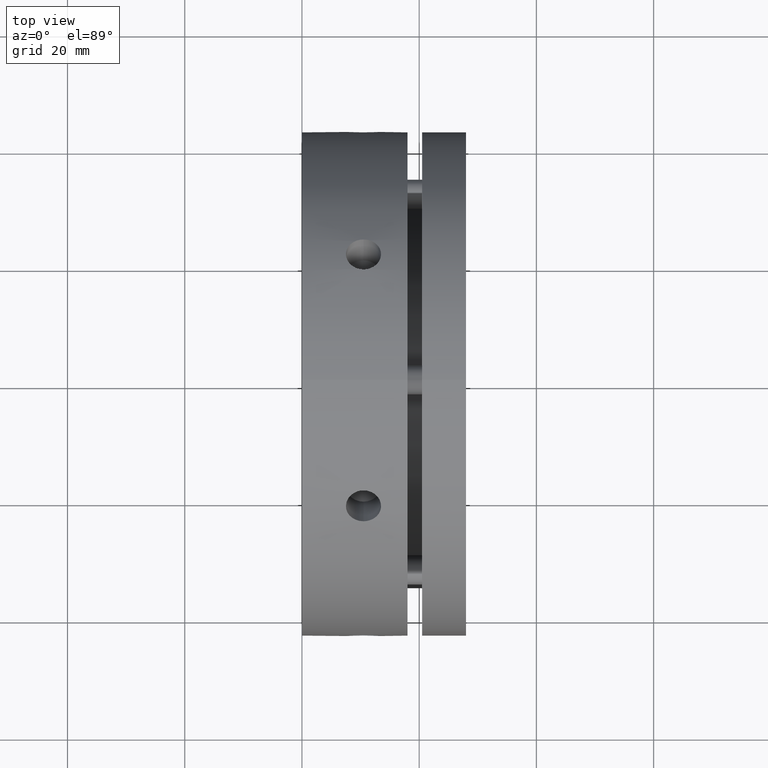
[diagram: clean part render]
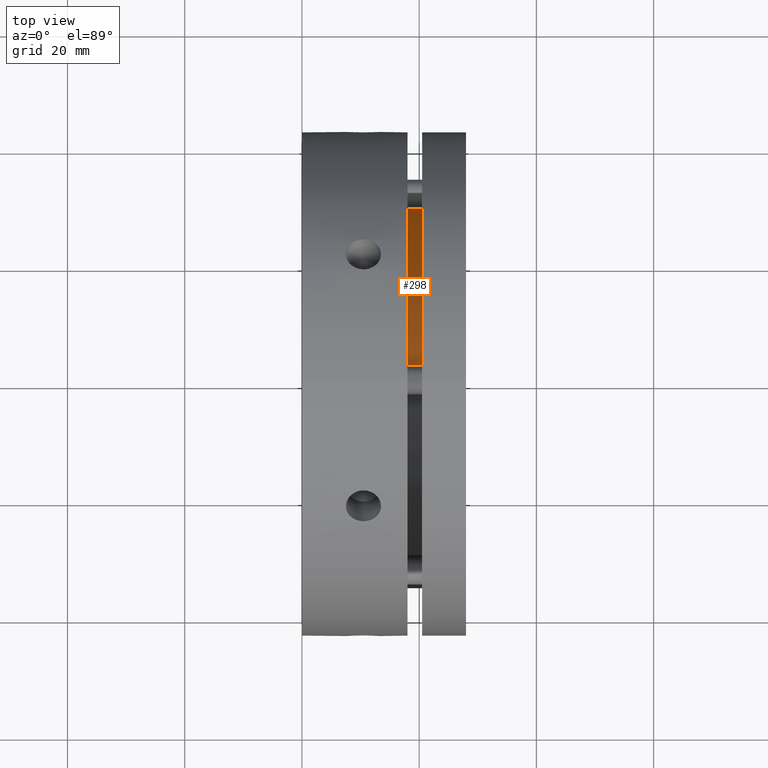
[diagram: same view with one face highlighted and labeled with its STEP entity id]
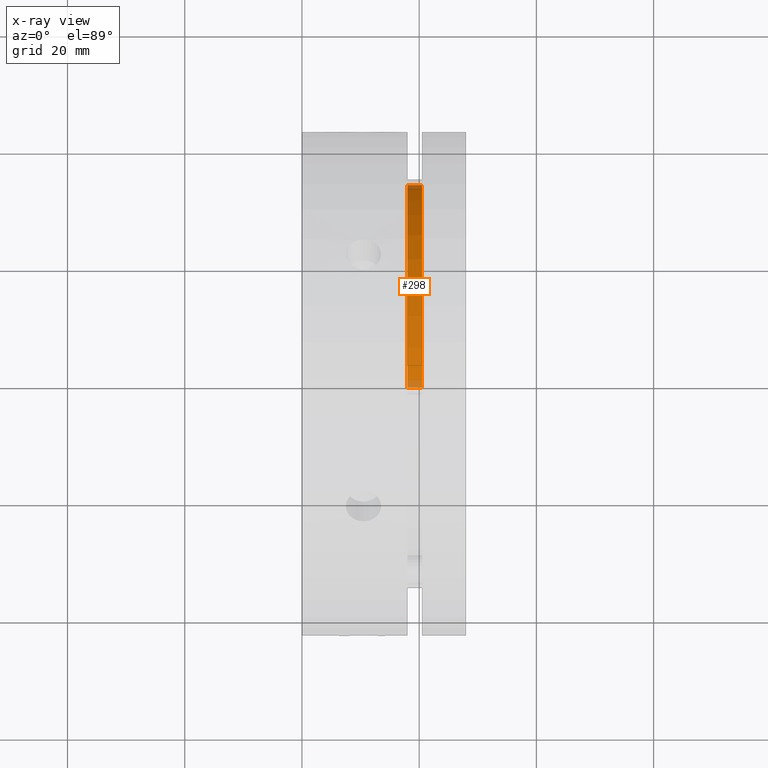
[diagram: x-ray of the same camera — body ghosted, the highlighted face saturated]
A machine part, top view. The second image highlights one B-rep face of the part: STEP entity #298.
The next image is the same camera in x-ray: the body ghosted, the highlighted face saturated — about 5% of this face is hidden behind the body in this view.
In plain terms, the highlighted cylindrical surface (partial cylindrical patch) has radius 34 mm, axis along (-1, 0, 0).
Its self-contained STEP definition (entity closure, byte-faithful):
#140 = EDGE_LOOP ( 'NONE', ( #3661, #3662, #3663, #3664 ) ) ;
#298 = ADVANCED_FACE ( 'NONE', ( #4383 ), #4389, .T. ) ;
#505 = EDGE_CURVE ( 'NONE', #4217, #4211, #2020, .T. ) ;
#506 = EDGE_CURVE ( 'NONE', #4211, #4220, #2018, .T. ) ;
#507 = EDGE_CURVE ( 'NONE', #4220, #4221, #2023, .T. ) ;
#508 = EDGE_CURVE ( 'NONE', #4217, #4221, #2025, .T. ) ;
#761 = DIRECTION ( 'NONE',  ( 0.0000000000000000000, 0.0000000000000000000, 1.000000000000000000 ) ) ;
#763 = DIRECTION ( 'NONE',  ( -1.000000000000000000, 0.0000000000000000000, 0.0000000000000000000 ) ) ;
#765 = CARTESIAN_POINT ( 'NONE',  ( 19.24999999999999600, 0.0000000000000000000, 0.0000000000000000000 ) ) ;
#1602 = DIRECTION ( 'NONE',  ( -1.000000000000000000, 0.0000000000000000000, 0.0000000000000000000 ) ) ;
#1605 = DIRECTION ( 'NONE',  ( -1.000000000000000000, 0.0000000000000000000, 0.0000000000000000000 ) ) ;
#1606 = CARTESIAN_POINT ( 'NONE',  ( 19.24999999999999600, 0.0000000000000000000, 34.00000000000000700 ) ) ;
#1607 = CARTESIAN_POINT ( 'NONE',  ( 19.24999999999999600, 4.163799117101001300E-015, -34.00000000000000700 ) ) ;
#1608 = CARTESIAN_POINT ( 'NONE',  ( 20.50000000000000000, 0.0000000000000000000, 0.0000000000000000000 ) ) ;
#1609 = DIRECTION ( 'NONE',  ( -1.000000000000000000, 0.0000000000000000000, 0.0000000000000000000 ) ) ;
#1610 = DIRECTION ( 'NONE',  ( 0.0000000000000000000, 0.0000000000000000000, 1.000000000000000000 ) ) ;
#1611 = CARTESIAN_POINT ( 'NONE',  ( 17.99999999999999300, 0.0000000000000000000, 0.0000000000000000000 ) ) ;
#1612 = DIRECTION ( 'NONE',  ( 1.000000000000000000, -0.0000000000000000000, -0.0000000000000000000 ) ) ;
#1613 = DIRECTION ( 'NONE',  ( 0.0000000000000000000, 0.0000000000000000000, 1.000000000000000000 ) ) ;
#2018 = LINE ( 'NONE', #1607, #2024 ) ;
#2020 = CIRCLE ( 'NONE', #4695, 34.00000000000000700 ) ;
#2023 = CIRCLE ( 'NONE', #4696, 34.00000000000000700 ) ;
#2024 = VECTOR ( 'NONE', #1602, 1000.000000000000000 ) ;
#2025 = LINE ( 'NONE', #1606, #2027 ) ;
#2027 = VECTOR ( 'NONE', #1605, 1000.000000000000000 ) ;
#3099 = CARTESIAN_POINT ( 'NONE',  ( 20.50000000000000000, 4.163799117101001300E-015, -34.00000000000000700 ) ) ;
#3105 = CARTESIAN_POINT ( 'NONE',  ( 20.50000000000000000, 0.0000000000000000000, 34.00000000000000700 ) ) ;
#3108 = CARTESIAN_POINT ( 'NONE',  ( 17.99999999999999300, 4.163799117101001300E-015, -34.00000000000000700 ) ) ;
#3109 = CARTESIAN_POINT ( 'NONE',  ( 17.99999999999999300, 0.0000000000000000000, 34.00000000000000700 ) ) ;
#3661 = ORIENTED_EDGE ( 'NONE', *, *, #505, .T. ) ;
#3662 = ORIENTED_EDGE ( 'NONE', *, *, #506, .T. ) ;
#3663 = ORIENTED_EDGE ( 'NONE', *, *, #507, .T. ) ;
#3664 = ORIENTED_EDGE ( 'NONE', *, *, #508, .F. ) ;
#4211 = VERTEX_POINT ( 'NONE', #3099 ) ;
#4217 = VERTEX_POINT ( 'NONE', #3105 ) ;
#4220 = VERTEX_POINT ( 'NONE', #3108 ) ;
#4221 = VERTEX_POINT ( 'NONE', #3109 ) ;
#4383 = FACE_OUTER_BOUND ( 'NONE', #140, .T. ) ;
#4389 = CYLINDRICAL_SURFACE ( 'NONE', #4563, 34.00000000000000700 ) ;
#4563 = AXIS2_PLACEMENT_3D ( 'NONE', #765, #763, #761 ) ;
#4695 = AXIS2_PLACEMENT_3D ( 'NONE', #1608, #1609, #1610 ) ;
#4696 = AXIS2_PLACEMENT_3D ( 'NONE', #1611, #1612, #1613 ) ;